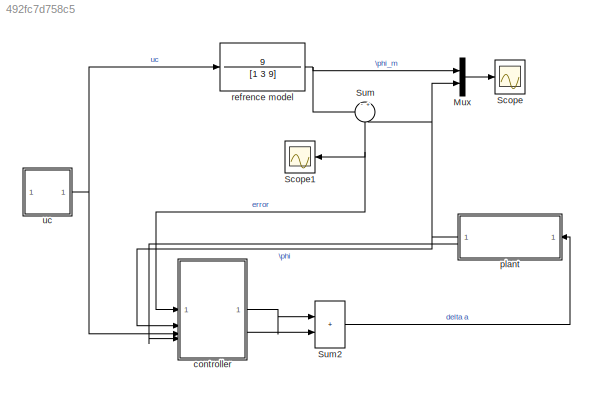
MODEL slx_492fc7d758c5
KIND model
CONFIG AbsTol = auto
CONFIG EnableMultiTasking = off
CONFIG FixedStep = 0.1
CONFIG MaxStep = auto
CONFIG MinStep = auto
CONFIG RelTol = 1e-3
CONFIG SampleTimeConstraint = Unconstrained
CONFIG SolverName = VariableStepAuto
CONFIG StartTime = 0.0
CONFIG StopTime = 300
BLOCK [Mux] Mux
  DisplayOption = bar
  Inputs = 2
BLOCK [Scope] Scope
  Floating = off
  NumInputPorts = 1
  ScopeSpecificationString = Simulink.scopes.TimeScopeBlockCfg('CurrentConfiguration', extmgr.ConfigurationSet(extmgr.Configuration('Core','General UI',true,'FigureColor',[1 1 1]),extmgr.Configuration('Core','Source UI',true),extmgr.Configuration('Sources','WiredSimulink',true),extmgr.Configuration('Visuals','Time Domain',true,'SerializedDisplays',{struct('MinYLimReal','-5.19089','MaxYLimReal','10.03704','YLabelReal','','MinY...<+1754ch>
BLOCK [Scope] Scope1
  Floating = off
  NameLocation = top
  NumInputPorts = 1
  ScopeSpecificationString = Simulink.scopes.TimeScopeBlockCfg('CurrentConfiguration', extmgr.ConfigurationSet(extmgr.Configuration('Core','General UI',true,'FigureColor',[1 1 1]),extmgr.Configuration('Core','Source UI',true),extmgr.Configuration('Sources','WiredSimulink',true,'DataLoggingVariableName','ScopeData1'),extmgr.Configuration('Visuals','Time Domain',true,'SerializedDisplays',{struct('MinYLimReal','-7.00807','MaxYLi...<+1656ch>
BLOCK [Sum] Sum
  Inputs = -+
  NameLocation = left
BLOCK [Sum] Sum2
  IconShape = rectangular
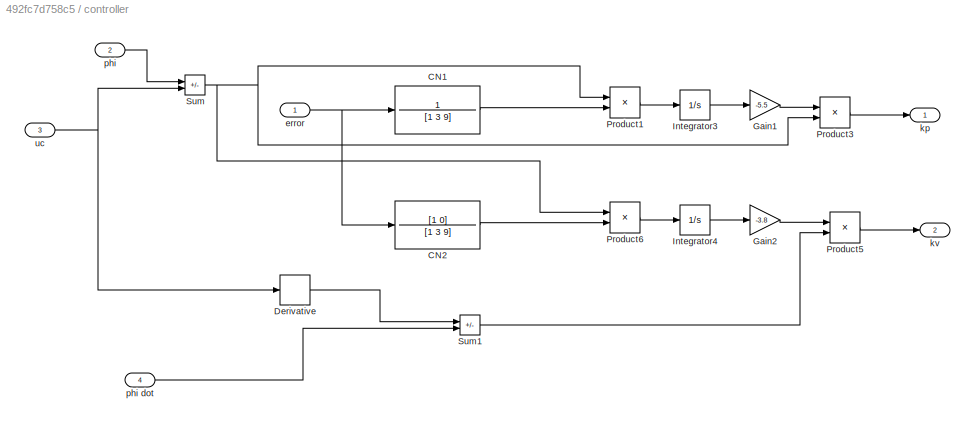
BLOCK [SubSystem] controller
BLOCK [TransferFcn] controller/CN1
  Denominator = [1 3 9]
  NameLocation = top
  Numerator = 1
BLOCK [TransferFcn] controller/CN2
  Denominator = [1 3 9]
  NameLocation = top
  Numerator = [1 0]
BLOCK [Derivative] controller/Derivative
BLOCK [Gain] controller/Gain1
  Gain = -5.5
BLOCK [Gain] controller/Gain2
  Gain = -3.8
BLOCK [Integrator] controller/Integrator3
BLOCK [Integrator] controller/Integrator4
BLOCK [Product] controller/Product1
BLOCK [Product] controller/Product3
BLOCK [Product] controller/Product5
BLOCK [Product] controller/Product6
BLOCK [Sum] controller/Sum
  IconShape = rectangular
  Inputs = +-
BLOCK [Sum] controller/Sum1
  IconShape = rectangular
  Inputs = -+
BLOCK [Inport] controller/error
BLOCK [Outport] controller/kp
BLOCK [Outport] controller/kv
  Port = 2
BLOCK [Inport] controller/phi
  Port = 2
BLOCK [Inport] controller/phi dot
  Port = 4
BLOCK [Inport] controller/uc
  Port = 3
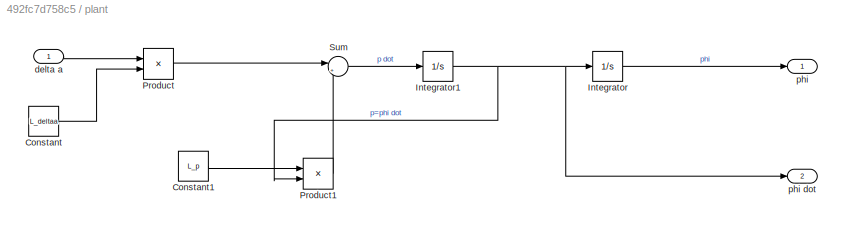
BLOCK [SubSystem] plant
  NameLocation = top
BLOCK [Constant] plant/Constant
  Value = L_deltaa
BLOCK [Constant] plant/Constant1
  Value = L_p
BLOCK [Integrator] plant/Integrator
BLOCK [Integrator] plant/Integrator1
BLOCK [Product] plant/Product
BLOCK [Product] plant/Product1
BLOCK [Sum] plant/Sum
  Inputs = |++
BLOCK [Inport] plant/delta a
BLOCK [Outport] plant/phi
BLOCK [Outport] plant/phi dot
  Port = 2
BLOCK [TransferFcn] refrence model
  Denominator = [1 3 9]
  NameLocation = top
  Numerator = 9
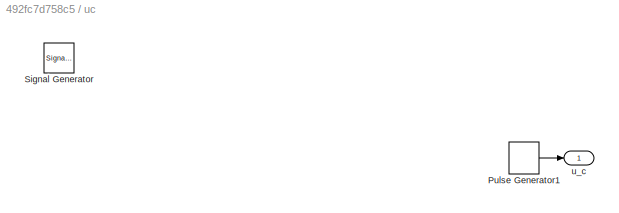
BLOCK [SubSystem] uc
  NameLocation = top
BLOCK [DiscretePulseGenerator] uc/Pulse Generator1
  Amplitude = 5
  Period = 20
  PulseType = Time based
  PulseWidth = 60
BLOCK [SignalGenerator] uc/Signal Generator
  Amplitude = 5
  Units = rad/sec
  WaveForm = square
BLOCK [Outport] uc/u_c
LINE Mux:1 -> Scope:1
LINE Sum2:1 -> plant:1
NET Sum:1 -> Scope1:1, controller:1
LINE controller/CN1:1 -> controller/Product1:2
LINE controller/CN2:1 -> controller/Product6:2
LINE controller/Derivative:1 -> controller/Sum1:1
LINE controller/Gain1:1 -> controller/Product3:1
LINE controller/Gain2:1 -> controller/Product5:1
LINE controller/Integrator3:1 -> controller/Gain1:1
LINE controller/Integrator4:1 -> controller/Gain2:1
LINE controller/Product1:1 -> controller/Integrator3:1
LINE controller/Product3:1 -> controller/kp:1
LINE controller/Product5:1 -> controller/kv:1
LINE controller/Product6:1 -> controller/Integrator4:1
LINE controller/Sum1:1 -> controller/Product5:2
NET controller/Sum:1 -> controller/Product1:1, controller/Product3:2, controller/Product6:1
NET controller/error:1 -> controller/CN1:1, controller/CN2:1
LINE controller/phi dot:1 -> controller/Sum1:2
LINE controller/phi:1 -> controller/Sum:1
NET controller/uc:1 -> controller/Derivative:1, controller/Sum:2
LINE controller:1 -> Sum2:1
LINE controller:2 -> Sum2:2
LINE plant/Constant1:1 -> plant/Product1:1
LINE plant/Constant:1 -> plant/Product:2
NET plant/Integrator1:1 -> plant/Integrator:1, plant/Product1:2, plant/phi dot:1
LINE plant/Integrator:1 -> plant/phi:1
LINE plant/Product1:1 -> plant/Sum:2
LINE plant/Product:1 -> plant/Sum:1
LINE plant/Sum:1 -> plant/Integrator1:1
LINE plant/delta a:1 -> plant/Product:1
NET plant:1 -> Mux:2, Sum:2, controller:2
LINE plant:2 -> controller:4
NET refrence model:1 -> Mux:1, Sum:1
LINE uc/Pulse Generator1:1 -> uc/u_c:1
NET uc:1 -> controller:3, refrence model:1
note: NET lines group one-source signal fan-out (src -> all destinations, sorted); 1:1 wires keep LINE
